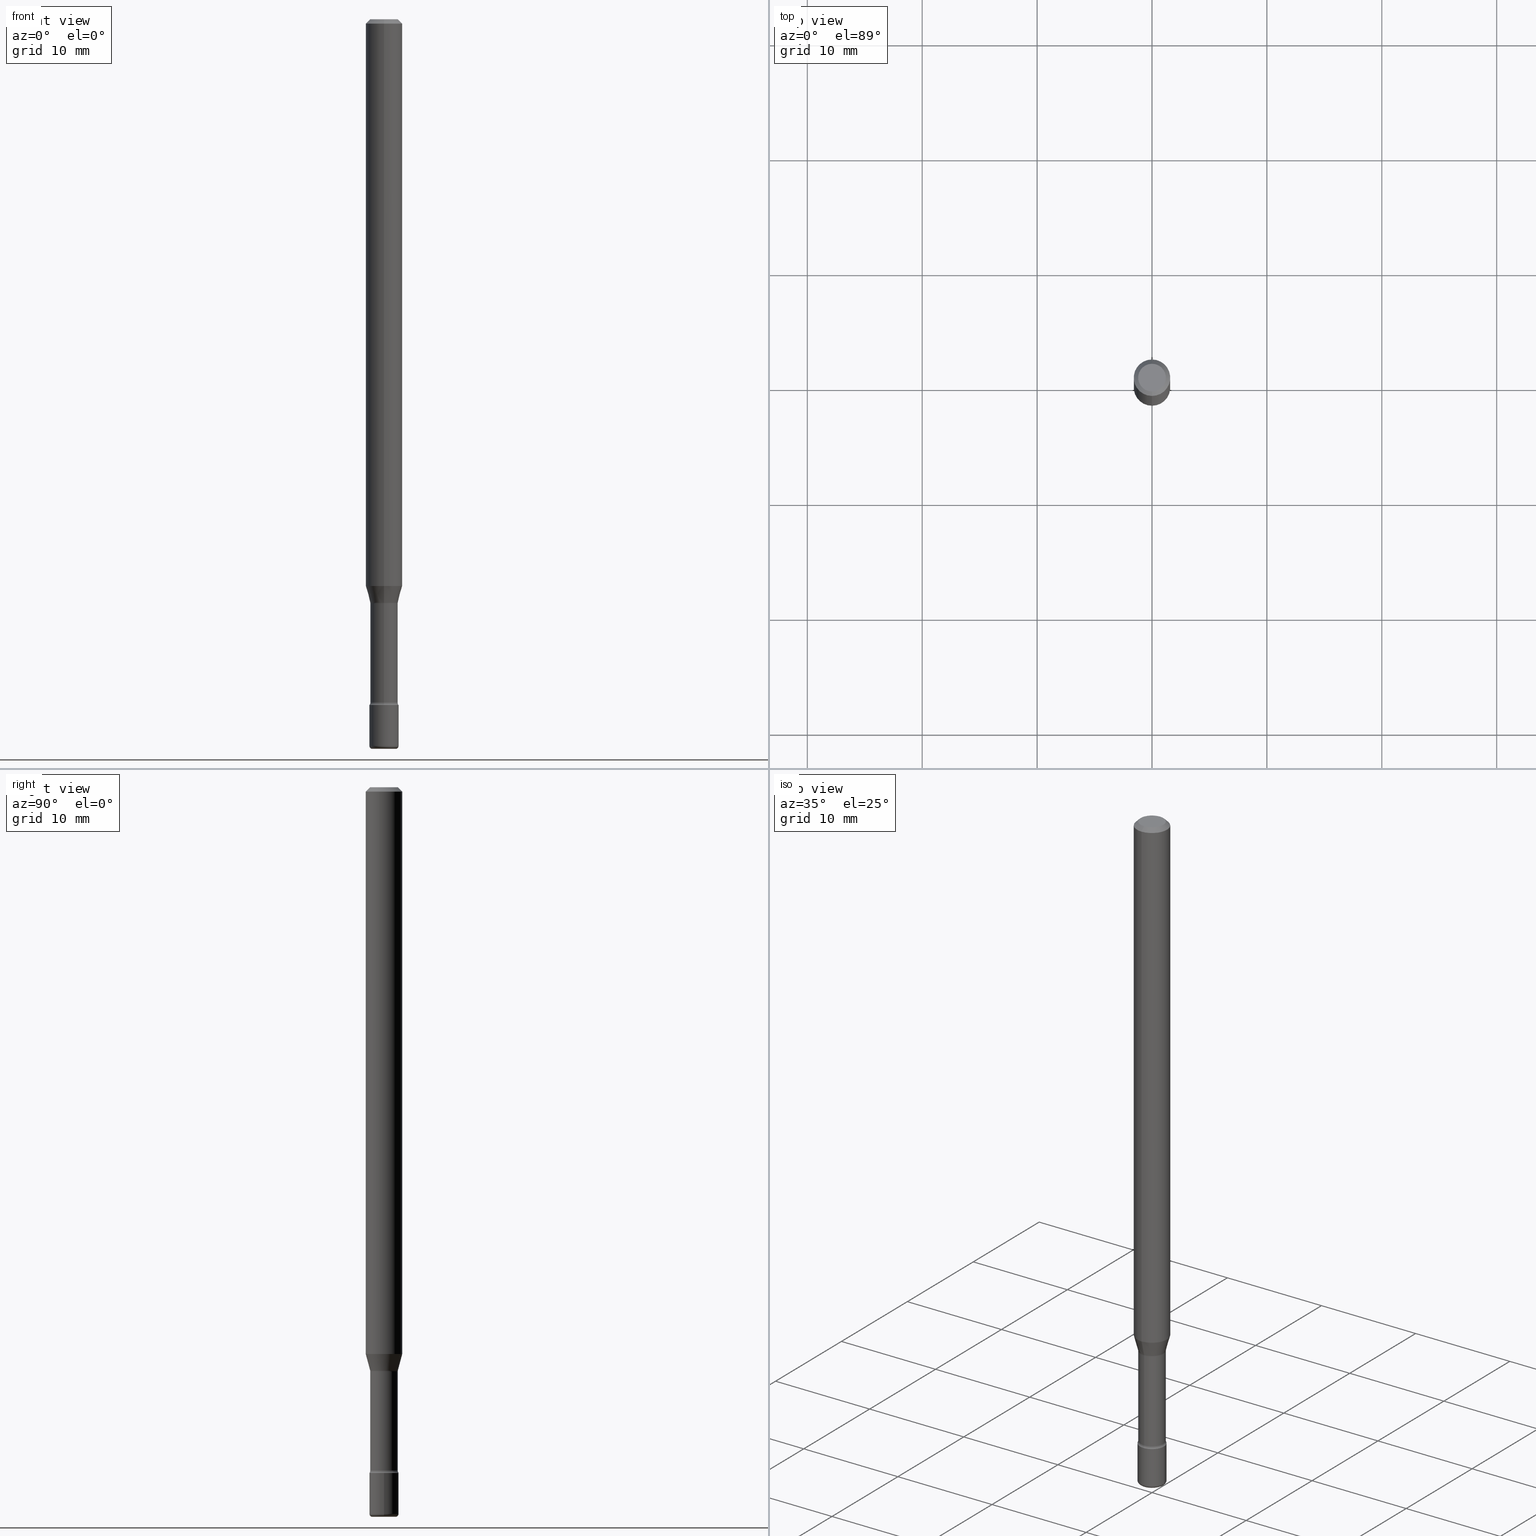
[diagram: canonical four-view strip — front | top / right | iso, engineering-drawing reading convention]
A machine part, canonical four-view strip (front | top / right | iso — engineering-drawing reading convention). The complete STEP part file that produces these views, byte-faithful:
ISO-10303-21;
HEADER;
FILE_DESCRIPTION (( 'STEP AP203' ),
    '1' );
FILE_NAME ('08860.STEP',
    '2024-03-06T20:06:26',
    ( '' ),
    ( '' ),
    'SwSTEP 2.0',
    'SolidWorks 2023',
    '' );
FILE_SCHEMA (( 'CONFIG_CONTROL_DESIGN' ));
ENDSEC;

DATA;
#1 = DIRECTION ( 'NONE',  ( -6.982962677686265922E-15, -1.000000000000000000, 5.749913744050249041E-15 ) ) ;
#2 = CIRCLE ( 'NONE', #531, 0.01000000000000009041 ) ;
#3 = DIRECTION ( 'NONE',  ( -6.982962677686265133E-15, -1.000000000000000000, 5.463695987328526437E-15 ) ) ;
#4 = CARTESIAN_POINT ( 'NONE',  ( 4.886417990261767217E-29, -6.976094884269204022E-15, -1.998092501787273045 ) ) ;
#5 = AXIS2_PLACEMENT_3D ( 'NONE', #545, #416, #63 ) ;
#6 = CIRCLE ( 'NONE', #403, 0.01500000000000002720 ) ;
#7 = CARTESIAN_POINT ( 'NONE',  ( 3.446132268437060393E-16, 0.04699999999999183303, -2.341000000000000192 ) ) ;
#8 = DIRECTION ( 'NONE',  ( -2.445541428082492260E-29, 3.491377340152750324E-15, 1.000000000000000000 ) ) ;
#9 = EDGE_CURVE ( 'NONE', #527, #36, #222, .T. ) ;
#10 = DIRECTION ( 'NONE',  ( -1.000000000000000000, 6.982962677686265922E-15, -4.883557194083112340E-29 ) ) ;
#11 = ORIENTED_EDGE ( 'NONE', *, *, #350, .T. ) ;
#12 = PERSON_AND_ORGANIZATION ( #454, #308 ) ;
#13 = DIRECTION ( 'NONE',  ( -2.438088387897960049E-29, 3.491481338843145188E-15, 1.000000000000000000 ) ) ;
#14 = CARTESIAN_POINT ( 'NONE',  ( 5.746851694535070554E-29, -8.204981146281391784E-15, -2.350000000000000089 ) ) ;
#15 = PERSON_AND_ORGANIZATION_ROLE ( 'creator' ) ;
#16 = ADVANCED_FACE ( 'NONE', ( #132 ), #535, .T. ) ;
#17 = FACE_OUTER_BOUND ( 'NONE', #119, .T. ) ;
#18 = DIRECTION ( 'NONE',  ( 1.000000000000000000, -6.982962677686265922E-15, 4.876176775795935793E-29 ) ) ;
#19 = APPROVAL_ROLE ( '' ) ;
#20 = DIRECTION ( 'NONE',  ( -2.445541428082492260E-29, 3.491377340152750324E-15, 1.000000000000000000 ) ) ;
#21 = VECTOR ( 'NONE', #245, 39.37007874015748143 ) ;
#22 = DIRECTION ( 'NONE',  ( -2.445468806185136597E-29, 3.491481338843145583E-15, 1.000000000000000000 ) ) ;
#23 = EDGE_CURVE ( 'NONE', #565, #494, #265, .T. ) ;
#24 = CARTESIAN_POINT ( 'NONE',  ( 3.668312142123745187E-31, -5.237066010229135864E-17, -0.01500000000000002720 ) ) ;
#25 = ORIENTED_EDGE ( 'NONE', *, *, #359, .F. ) ;
#26 = AXIS2_PLACEMENT_3D ( 'NONE', #90, #224, #405 ) ;
#27 = VECTOR ( 'NONE', #537, 39.37007874015748143 ) ;
#28 = EDGE_CURVE ( 'NONE', #69, #393, #93, .T. ) ;
#29 = CARTESIAN_POINT ( 'NONE',  ( 4.749616140809899417E-29, -6.780789717166906576E-15, -1.942153212482682578 ) ) ;
#30 = ORIENTED_EDGE ( 'NONE', *, *, #422, .F. ) ;
#31 = CARTESIAN_POINT ( 'NONE',  ( -1.169113584055446105E-44, 1.669184350826100908E-30, 4.780733988912460139E-16 ) ) ;
#32 = PRODUCT_RELATED_PRODUCT_CATEGORY ( 'detail', '', ( #432 ) ) ;
#33 = ORIENTED_EDGE ( 'NONE', *, *, #288, .T. ) ;
#34 = AXIS2_PLACEMENT_3D ( 'NONE', #561, #22, #208 ) ;
#35 = DIRECTION ( 'NONE',  ( -2.445468806185136597E-29, 3.491481338843145583E-15, 1.000000000000000000 ) ) ;
#36 = VERTEX_POINT ( 'NONE', #397 ) ;
#37 = CARTESIAN_POINT ( 'NONE',  ( 4.895766893511868006E-29, -6.989857611264368100E-15, -2.001974787463811190 ) ) ;
#38 = EDGE_LOOP ( 'NONE', ( #153, #216, #121, #329 ) ) ;
#39 = EDGE_CURVE ( 'NONE', #36, #527, #100, .T. ) ;
#40 = DIRECTION ( 'NONE',  ( -6.982962677686265922E-15, -1.000000000000000000, 5.812442539711197800E-15 ) ) ;
#41 = CARTESIAN_POINT ( 'NONE',  ( 4.886417990261767217E-29, -6.976094884269204022E-15, -1.998092501787273045 ) ) ;
#42 = CARTESIAN_POINT ( 'NONE',  ( -4.364351673553912750E-16, -0.06250000000000005551, -0.01499999999999981036 ) ) ;
#43 = FACE_OUTER_BOUND ( 'NONE', #185, .T. ) ;
#44 = DIRECTION ( 'NONE',  ( -2.445541428082492260E-29, 3.491377340152750324E-15, 1.000000000000000000 ) ) ;
#45 = EDGE_CURVE ( 'NONE', #427, #179, #571, .T. ) ;
#46 = DIRECTION ( 'NONE',  ( -6.982962677686265922E-15, -1.000000000000000000, 3.491377340152750324E-15 ) ) ;
#47 = VECTOR ( 'NONE', #383, 39.37007874015748143 ) ;
#48 = DIRECTION ( 'NONE',  ( -2.445541428082492260E-29, 3.491377340152750324E-15, 1.000000000000000000 ) ) ;
#49 = EDGE_CURVE ( 'NONE', #475, #521, #2, .T. ) ;
#50 = PERSON_AND_ORGANIZATION_ROLE ( 'design_owner' ) ;
#51 = DIRECTION ( 'NONE',  ( -6.982962677686265922E-15, -1.000000000000000000, 3.491377340152750324E-15 ) ) ;
#52 = DATE_TIME_ROLE ( 'creation_date' ) ;
#53 = CARTESIAN_POINT ( 'NONE',  ( 2.793185071075117657E-16, 0.03999999999999127864, -2.500000000000000000 ) ) ;
#54 = AXIS2_PLACEMENT_3D ( 'NONE', #41, #490, #1 ) ;
#55 = PERSON_AND_ORGANIZATION_ROLE ( 'creator' ) ;
#56 = CYLINDRICAL_SURFACE ( 'NONE', #134, 0.04700000000000000705 ) ;
#57 = CIRCLE ( 'NONE', #226, 0.06250000000000000000 ) ;
#58 = ORIENTED_EDGE ( 'NONE', *, *, #28, .F. ) ;
#59 = APPROVAL_DATE_TIME ( #453, #316 ) ;
#60 = DIRECTION ( 'NONE',  ( -6.982962677686265922E-15, -1.000000000000000000, 3.491377340152749929E-15 ) ) ;
#61 = SHAPE_DEFINITION_REPRESENTATION ( #252, #133 ) ;
#62 = CIRCLE ( 'NONE', #315, 0.01500000000000003587 ) ;
#63 = DIRECTION ( 'NONE',  ( 1.000000000000000000, -6.982962677686261977E-15, 4.883557194083110659E-29 ) ) ;
#64 = ADVANCED_FACE ( 'NONE', ( #497 ), #363, .T. ) ;
#65 = AXIS2_PLACEMENT_3D ( 'NONE', #70, #559, #113 ) ;
#66 = DIRECTION ( 'NONE',  ( -2.445541428082492260E-29, 3.491377340152750324E-15, 1.000000000000000000 ) ) ;
#67 = ORIENTED_EDGE ( 'NONE', *, *, #288, .F. ) ;
#68 = LINE ( 'NONE', #435, #21 ) ;
#69 = VERTEX_POINT ( 'NONE', #264 ) ;
#70 = CARTESIAN_POINT ( 'NONE',  ( 6.089217327400989947E-29, -8.693788533719431716E-15, -2.489999999999999769 ) ) ;
#71 = ORIENTED_EDGE ( 'NONE', *, *, #39, .F. ) ;
#72 = CIRCLE ( 'NONE', #111, 0.05000000000000000278 ) ;
#73 =( GEOMETRIC_REPRESENTATION_CONTEXT ( 3 ) GLOBAL_UNCERTAINTY_ASSIGNED_CONTEXT ( ( #417 ) ) GLOBAL_UNIT_ASSIGNED_CONTEXT ( ( #80, #443, #317 ) ) REPRESENTATION_CONTEXT ( 'NONE', 'WORKASPACE' ) );
#74 = DIRECTION ( 'NONE',  ( -2.445541428082492260E-29, 3.491377340152750324E-15, 1.000000000000000000 ) ) ;
#75 = CIRCLE ( 'NONE', #442, 0.06250000000000000000 ) ;
#76 = EDGE_LOOP ( 'NONE', ( #244, #509, #163, #349 ) ) ;
#77 = AXIS2_PLACEMENT_3D ( 'NONE', #31, #301, #296 ) ;
#78 = CARTESIAN_POINT ( 'NONE',  ( 5.724842475279404612E-29, -8.173557814231803142E-15, -2.341000000000000192 ) ) ;
#79 = EDGE_LOOP ( 'NONE', ( #345, #292, #103, #486 ) ) ;
#80 =( CONVERSION_BASED_UNIT ( 'INCH', #303 ) LENGTH_UNIT ( ) NAMED_UNIT ( #366 ) );
#81 = ORIENTED_EDGE ( 'NONE', *, *, #144, .F. ) ;
#82 = ADVANCED_FACE ( 'NONE', ( #309 ), #430, .F. ) ;
#83 = CARTESIAN_POINT ( 'NONE',  ( 0.05000000000000004441, -9.042936667603745051E-15, -2.489999999999999769 ) ) ;
#84 = ORIENTED_EDGE ( 'NONE', *, *, #445, .T. ) ;
#85 = CIRCLE ( 'NONE', #65, 0.05000000000000000971 ) ;
#86 = DIRECTION ( 'NONE',  ( -6.982962677686272233E-15, -1.000000000000000000, 0.000000000000000000 ) ) ;
#87 = ORIENTED_EDGE ( 'NONE', *, *, #262, .T. ) ;
#88 = ADVANCED_FACE ( 'NONE', ( #43 ), #203, .F. ) ;
#89 = DIRECTION ( 'NONE',  ( 7.105427357601006592E-15, 1.000000000000000000, 0.000000000000000000 ) ) ;
#90 = CARTESIAN_POINT ( 'NONE',  ( 4.895912280719391732E-29, -6.989649408508267577E-15, -2.001974787463811190 ) ) ;
#91 = EDGE_CURVE ( 'NONE', #297, #393, #384, .T. ) ;
#92 = CARTESIAN_POINT ( 'NONE',  ( -0.04000000000000000083, -8.391501709321602173E-15, -2.500000000000000000 ) ) ;
#93 = LINE ( 'NONE', #444, #460 ) ;
#94 = CIRCLE ( 'NONE', #242, 0.04750000000000000749 ) ;
#95 = CALENDAR_DATE ( 2024, 6, 3 ) ;
#96 = CARTESIAN_POINT ( 'NONE',  ( 5.724842475279404612E-29, -8.173557814231803142E-15, -2.341000000000000192 ) ) ;
#97 = COORDINATED_UNIVERSAL_TIME_OFFSET ( 5, 0, .BEHIND. ) ;
#98 = DIRECTION ( 'NONE',  ( -2.445468806185136597E-29, 3.491481338843145583E-15, 1.000000000000000000 ) ) ;
#99 = ADVANCED_FACE ( 'NONE', ( #324 ), #145, .T. ) ;
#100 = CIRCLE ( 'NONE', #54, 0.04751111260566397154 ) ;
#101 = DIRECTION ( 'NONE',  ( 0.000000000000000000, 0.000000000000000000, 1.000000000000000000 ) ) ;
#102 = DIRECTION ( 'NONE',  ( -1.000000000000000000, 6.982962677686265922E-15, -4.883557194083112340E-29 ) ) ;
#103 = ORIENTED_EDGE ( 'NONE', *, *, #382, .F. ) ;
#104 = PRODUCT_DEFINITION ( 'UNKNOWN', '', #375, #344 ) ;
#105 = PERSON_AND_ORGANIZATION_ROLE ( 'classification_officer' ) ;
#106 = DIRECTION ( 'NONE',  ( -2.445541428082492260E-29, 3.491377340152750324E-15, 1.000000000000000000 ) ) ;
#107 = DIRECTION ( 'NONE',  ( -6.982962677686265922E-15, -1.000000000000000000, 4.370956789862821150E-15 ) ) ;
#108 = CC_DESIGN_PERSON_AND_ORGANIZATION_ASSIGNMENT ( #544, #15, ( #375 ) ) ;
#109 = DIRECTION ( 'NONE',  ( -2.445468806185136877E-29, 3.491481338843145188E-15, 1.000000000000000000 ) ) ;
#110 = ORIENTED_EDGE ( 'NONE', *, *, #406, .T. ) ;
#111 = AXIS2_PLACEMENT_3D ( 'NONE', #14, #322, #331 ) ;
#112 = AXIS2_PLACEMENT_3D ( 'NONE', #333, #286, #51 ) ;
#113 = DIRECTION ( 'NONE',  ( 1.000000000000000000, -6.982962677686273021E-15, 0.000000000000000000 ) ) ;
#114 = ORIENTED_EDGE ( 'NONE', *, *, #23, .F. ) ;
#115 = LINE ( 'NONE', #379, #47 ) ;
#116 = VERTEX_POINT ( 'NONE', #549 ) ;
#117 = DIRECTION ( 'NONE',  ( -6.982962677686265922E-15, -1.000000000000000000, 3.491377340152751112E-15 ) ) ;
#118 = LOCAL_TIME ( 15, 6, 26.00000000000000000, #323 ) ;
#119 = EDGE_LOOP ( 'NONE', ( #165, #211 ) ) ;
#120 = CARTESIAN_POINT ( 'NONE',  ( 3.375867592983954636E-16, 0.04751111260565699795, -1.998092501787273267 ) ) ;
#121 = ORIENTED_EDGE ( 'NONE', *, *, #406, .F. ) ;
#122 = CIRCLE ( 'NONE', #451, 0.04000000000000000083 ) ;
#123 = EDGE_CURVE ( 'NONE', #560, #505, #72, .T. ) ;
#124 = DIRECTION ( 'NONE',  ( 1.000000000000000000, -7.105427357601001070E-15, 4.926314234925449358E-29 ) ) ;
#125 = EDGE_LOOP ( 'NONE', ( #114, #517, #562, #342 ) ) ;
#126 = CIRCLE ( 'NONE', #458, 0.04000000000000000083 ) ;
#127 = DIRECTION ( 'NONE',  ( 6.982962677686265922E-15, 1.000000000000000000, -3.491377340152750324E-15 ) ) ;
#128 = EDGE_CURVE ( 'NONE', #36, #116, #239, .T. ) ;
#129 = ORIENTED_EDGE ( 'NONE', *, *, #555, .F. ) ;
#130 = AXIS2_PLACEMENT_3D ( 'NONE', #136, #174, #141 ) ;
#131 = FACE_OUTER_BOUND ( 'NONE', #385, .T. ) ;
#132 = FACE_OUTER_BOUND ( 'NONE', #465, .T. ) ;
#133 = ADVANCED_BREP_SHAPE_REPRESENTATION ( '08860', ( #295, #285, #346 ), #73 ) ;
#134 = AXIS2_PLACEMENT_3D ( 'NONE', #241, #20, #60 ) ;
#135 = CARTESIAN_POINT ( 'NONE',  ( -0.04000000000000000083, -8.409571439415391389E-15, -2.489999999999999769 ) ) ;
#136 = CARTESIAN_POINT ( 'NONE',  ( 4.886417990261767217E-29, -6.976094884269204022E-15, -1.998092501787273045 ) ) ;
#137 = CC_DESIGN_PERSON_AND_ORGANIZATION_ASSIGNMENT ( #552, #105, ( #502 ) ) ;
#138 = CARTESIAN_POINT ( 'NONE',  ( -3.773273898774340269E-16, -0.04750000000000000749, 1.387462965223224144E-16 ) ) ;
#139 = CARTESIAN_POINT ( 'NONE',  ( 4.364351673553919652E-16, 0.06249999999999995143, -0.01500000000000024578 ) ) ;
#140 = APPROVAL_STATUS ( 'not_yet_approved' ) ;
#141 = DIRECTION ( 'NONE',  ( -6.982962677686265922E-15, -1.000000000000000000, 5.749913744050249041E-15 ) ) ;
#142 = VECTOR ( 'NONE', #109, 39.37007874015748143 ) ;
#143 = COORDINATED_UNIVERSAL_TIME_OFFSET ( 5, 0, .BEHIND. ) ;
#144 = EDGE_CURVE ( 'NONE', #229, #116, #402, .T. ) ;
#145 = PLANE ( 'NONE',  #462 ) ;
#146 = CALENDAR_DATE ( 2024, 6, 3 ) ;
#147 = FACE_OUTER_BOUND ( 'NONE', #168, .T. ) ;
#148 = ADVANCED_FACE ( 'NONE', ( #147 ), #440, .T. ) ;
#149 = ORIENTED_EDGE ( 'NONE', *, *, #469, .F. ) ;
#150 = APPROVAL_PERSON_ORGANIZATION ( #155, #558, #457 ) ;
#151 = DATE_AND_TIME ( #548, #298 ) ;
#152 = LINE ( 'NONE', #508, #225 ) ;
#153 = ORIENTED_EDGE ( 'NONE', *, *, #39, .T. ) ;
#154 = ADVANCED_FACE ( 'NONE', ( #410 ), #365, .T. ) ;
#155 = PERSON_AND_ORGANIZATION ( #454, #308 ) ;
#156 = DIRECTION ( 'NONE',  ( 1.000000000000000000, -6.982962677686267499E-15, 4.876176775795936353E-29 ) ) ;
#157 = CARTESIAN_POINT ( 'NONE',  ( 0.05000000000000000971, -3.491481338843134341E-16, 2.438088387897968597E-30 ) ) ;
#158 = AXIS2_PLACEMENT_3D ( 'NONE', #353, #356, #3 ) ;
#159 = CARTESIAN_POINT ( 'NONE',  ( 4.440892098500625669E-16, 0.06250000000000000000, 2.598623151316991680E-16 ) ) ;
#160 = ORIENTED_EDGE ( 'NONE', *, *, #401, .F. ) ;
#161 = LINE ( 'NONE', #159, #290 ) ;
#162 = ADVANCED_FACE ( 'NONE', ( #368 ), #553, .T. ) ;
#163 = ORIENTED_EDGE ( 'NONE', *, *, #123, .F. ) ;
#164 = CYLINDRICAL_SURFACE ( 'NONE', #184, 0.06250000000000000000 ) ;
#165 = ORIENTED_EDGE ( 'NONE', *, *, #367, .F. ) ;
#166 = AXIS2_PLACEMENT_3D ( 'NONE', #37, #493, #532 ) ;
#167 = DIRECTION ( 'NONE',  ( -6.982962677686265922E-15, -1.000000000000000000, 3.483106191921935554E-15 ) ) ;
#168 = EDGE_LOOP ( 'NONE', ( #67, #431, #207, #439 ) ) ;
#169 = FACE_OUTER_BOUND ( 'NONE', #38, .T. ) ;
#170 = ORIENTED_EDGE ( 'NONE', *, *, #350, .F. ) ;
#171 = CARTESIAN_POINT ( 'NONE',  ( 6.089217327400989947E-29, -8.693788533719431716E-15, -2.489999999999999769 ) ) ;
#172 = DIRECTION ( 'NONE',  ( -6.982962677686265922E-15, -1.000000000000000000, 5.749913744050249041E-15 ) ) ;
#173 = CARTESIAN_POINT ( 'NONE',  ( 0.04000000000000000083, -9.008021854215314980E-15, -2.500000000000000000 ) ) ;
#174 = DIRECTION ( 'NONE',  ( -2.445541428082492260E-29, 3.491377340152750324E-15, 1.000000000000000000 ) ) ;
#175 = CC_DESIGN_APPROVAL ( #441, ( #375 ) ) ;
#176 = VECTOR ( 'NONE', #187, 39.37007874015748854 ) ;
#177 = FACE_OUTER_BOUND ( 'NONE', #236, .T. ) ;
#178 = AXIS2_PLACEMENT_3D ( 'NONE', #487, #267, #127 ) ;
#179 = VERTEX_POINT ( 'NONE', #470 ) ;
#180 = TOROIDAL_SURFACE ( 'NONE', #347, 0.06200000000000004813, 0.01500000000000004281 ) ;
#181 = CARTESIAN_POINT ( 'NONE',  ( -0.05000000000000004441, -8.338517165839381307E-15, -2.489999999999999769 ) ) ;
#182 = ORIENTED_EDGE ( 'NONE', *, *, #9, .F. ) ;
#183 = CARTESIAN_POINT ( 'NONE',  ( 3.908379845742528290E-16, 0.04751111260565699795, -1.998092501787273267 ) ) ;
#184 = AXIS2_PLACEMENT_3D ( 'NONE', #201, #426, #117 ) ;
#185 = EDGE_LOOP ( 'NONE', ( #182, #371, #390, #525 ) ) ;
#186 = AXIS2_PLACEMENT_3D ( 'NONE', #452, #8, #46 ) ;
#187 = DIRECTION ( 'NONE',  ( -1.807323732225328562E-15, -0.2588190451025179639, 0.9659258262890690894 ) ) ;
#188 = AXIS2_PLACEMENT_3D ( 'NONE', #206, #392, #254 ) ;
#189 = PERSON_AND_ORGANIZATION ( #454, #308 ) ;
#190 = CARTESIAN_POINT ( 'NONE',  ( -3.317683261006521343E-16, -0.04751111260567094513, -1.998092501787272823 ) ) ;
#191 = ORIENTED_EDGE ( 'NONE', *, *, #359, .T. ) ;
#192 = APPROVAL_STATUS ( 'not_yet_approved' ) ;
#193 = DIRECTION ( 'NONE',  ( 6.982962677686265922E-15, 1.000000000000000000, -3.483106191921935554E-15 ) ) ;
#194 = EDGE_CURVE ( 'NONE', #505, #560, #287, .T. ) ;
#195 = APPROVAL_DATE_TIME ( #501, #441 ) ;
#196 = CARTESIAN_POINT ( 'NONE',  ( 4.749616140809899417E-29, -6.780789717166906576E-15, -1.942153212482682578 ) ) ;
#197 = ADVANCED_FACE ( 'NONE', ( #275 ), #250, .T. ) ;
#198 = CIRCLE ( 'NONE', #300, 0.06250000000000000000 ) ;
#199 = APPROVAL_STATUS ( 'not_yet_approved' ) ;
#200 = CARTESIAN_POINT ( 'NONE',  ( 3.668312142123745187E-31, -5.237066010229135864E-17, -0.01500000000000002720 ) ) ;
#201 = CARTESIAN_POINT ( 'NONE',  ( -1.169113584055446105E-44, 1.669184350826100908E-30, 4.780733988912460139E-16 ) ) ;
#202 = ORIENTED_EDGE ( 'NONE', *, *, #332, .F. ) ;
#203 = TOROIDAL_SURFACE ( 'NONE', #186, 0.06200000000000000649, 0.01500000000000003240 ) ;
#204 = CARTESIAN_POINT ( 'NONE',  ( 3.339550858073042806E-16, 0.04699999999999300571, -2.001974787463811190 ) ) ;
#205 = ORIENTED_EDGE ( 'NONE', *, *, #194, .F. ) ;
#206 = CARTESIAN_POINT ( 'NONE',  ( 5.747022355993856728E-29, -8.204736749358963615E-15, -2.350000000000000089 ) ) ;
#207 = ORIENTED_EDGE ( 'NONE', *, *, #469, .T. ) ;
#208 = DIRECTION ( 'NONE',  ( 1.000000000000000000, -6.982962677686273021E-15, 0.000000000000000000 ) ) ;
#209 = ORIENTED_EDGE ( 'NONE', *, *, #414, .F. ) ;
#210 = CYLINDRICAL_SURFACE ( 'NONE', #310, 0.05000000000000000971 ) ;
#211 = ORIENTED_EDGE ( 'NONE', *, *, #476, .F. ) ;
#212 = AXIS2_PLACEMENT_3D ( 'NONE', #258, #219, #311 ) ;
#213 = DIRECTION ( 'NONE',  ( -6.982962677686265922E-15, -1.000000000000000000, 5.812442539711197800E-15 ) ) ;
#214 = CARTESIAN_POINT ( 'NONE',  ( -1.169113584055446105E-44, 1.669184350826100908E-30, 4.780733988912460139E-16 ) ) ;
#215 = CARTESIAN_POINT ( 'NONE',  ( -3.491481338842560938E-16, -0.05000000000000824618, -2.349999999999999645 ) ) ;
#216 = ORIENTED_EDGE ( 'NONE', *, *, #401, .T. ) ;
#217 = TOROIDAL_SURFACE ( 'NONE', #391, 0.04000000000000000083, 0.01000000000000009041 ) ;
#218 = EDGE_CURVE ( 'NONE', #36, #393, #240, .T. ) ;
#219 = DIRECTION ( 'NONE',  ( -2.445541428082492260E-29, 3.491377340152750324E-15, 1.000000000000000000 ) ) ;
#220 = DIRECTION ( 'NONE',  ( -6.982962677686265922E-15, -1.000000000000000000, 3.491377340152750324E-15 ) ) ;
#221 = CC_DESIGN_APPROVAL ( #558, ( #502 ) ) ;
#222 = CIRCLE ( 'NONE', #551, 0.04751111260566397154 ) ;
#223 = CARTESIAN_POINT ( 'NONE',  ( -4.329436860164915685E-16, -0.06200000000000822215, -2.340999999999999748 ) ) ;
#224 = DIRECTION ( 'NONE',  ( -2.445541428082492260E-29, 3.491377340152750324E-15, 1.000000000000000000 ) ) ;
#225 = VECTOR ( 'NONE', #106, 39.37007874015748143 ) ;
#226 = AXIS2_PLACEMENT_3D ( 'NONE', #29, #472, #474 ) ;
#227 = DIRECTION ( 'NONE',  ( -2.445468806185136597E-29, 3.491481338843145583E-15, 1.000000000000000000 ) ) ;
#228 = CIRCLE ( 'NONE', #34, 0.05000000000000000971 ) ;
#229 = VERTEX_POINT ( 'NONE', #234 ) ;
#230 = ADVANCED_FACE ( 'NONE', ( #464 ), #56, .T. ) ;
#231 = APPLICATION_PROTOCOL_DEFINITION ( 'international standard', 'config_control_design', 1994, #266 ) ;
#232 = DIRECTION ( 'NONE',  ( -2.445468806185136597E-29, 3.491481338843145583E-15, 1.000000000000000000 ) ) ;
#233 = PERSON_AND_ORGANIZATION ( #454, #308 ) ;
#234 = CARTESIAN_POINT ( 'NONE',  ( 4.440892098501102436E-16, 0.06249999999999325540, -1.942153212482682800 ) ) ;
#235 = DIRECTION ( 'NONE',  ( 2.445541428082492260E-29, -3.491377340152750324E-15, -1.000000000000000000 ) ) ;
#236 = EDGE_LOOP ( 'NONE', ( #305, #33 ) ) ;
#237 = COORDINATED_UNIVERSAL_TIME_OFFSET ( 5, 0, .BEHIND. ) ;
#238 = ADVANCED_FACE ( 'NONE', ( #377 ), #330, .T. ) ;
#239 = LINE ( 'NONE', #190, #176 ) ;
#240 = CIRCLE ( 'NONE', #372, 0.01500000000000002720 ) ;
#241 = CARTESIAN_POINT ( 'NONE',  ( -1.169113584055446105E-44, 1.669184350826100908E-30, 4.780733988912460139E-16 ) ) ;
#242 = AXIS2_PLACEMENT_3D ( 'NONE', #389, #341, #556 ) ;
#243 = DIRECTION ( 'NONE',  ( 1.839019923739598738E-15, 0.2588190451025247363, 0.9659258262890673130 ) ) ;
#244 = ORIENTED_EDGE ( 'NONE', *, *, #382, .T. ) ;
#245 = DIRECTION ( 'NONE',  ( -2.445468806185136877E-29, 3.491481338843145188E-15, 1.000000000000000000 ) ) ;
#246 = ORIENTED_EDGE ( 'NONE', *, *, #123, .T. ) ;
#247 = EDGE_CURVE ( 'NONE', #521, #560, #328, .T. ) ;
#248 = DIRECTION ( 'NONE',  ( -6.982962677686265133E-15, -1.000000000000000000, 3.491377340152749929E-15 ) ) ;
#249 = ORIENTED_EDGE ( 'NONE', *, *, #218, .T. ) ;
#250 = TOROIDAL_SURFACE ( 'NONE', #5, 0.04000000000000000083, 0.01000000000000009041 ) ;
#251 = ADVANCED_FACE ( 'NONE', ( #17 ), #370, .F. ) ;
#252 = PRODUCT_DEFINITION_SHAPE ( 'NONE', 'NONE',  #104 ) ;
#253 = ORIENTED_EDGE ( 'NONE', *, *, #247, .T. ) ;
#254 = DIRECTION ( 'NONE',  ( -6.982962677686265133E-15, -1.000000000000000000, 5.463695987328526437E-15 ) ) ;
#255 = CC_DESIGN_PERSON_AND_ORGANIZATION_ASSIGNMENT ( #189, #55, ( #104 ) ) ;
#256 = EDGE_LOOP ( 'NONE', ( #388, #71, #249, #478 ) ) ;
#257 = CIRCLE ( 'NONE', #158, 0.05000000000000000278 ) ;
#258 = CARTESIAN_POINT ( 'NONE',  ( 4.895912280719391732E-29, -6.989649408508267577E-15, -2.001974787463811190 ) ) ;
#259 = ORIENTED_EDGE ( 'NONE', *, *, #276, .F. ) ;
#260 = APPLICATION_CONTEXT ( 'configuration controlled 3d designs of mechanical parts and assemblies' ) ;
#261 = DIRECTION ( 'NONE',  ( -6.982962677686265922E-15, -1.000000000000000000, 3.491377340152751112E-15 ) ) ;
#262 = EDGE_CURVE ( 'NONE', #116, #494, #152, .T. ) ;
#263 = DIRECTION ( 'NONE',  ( -2.445541428082492260E-29, 3.491377340152750324E-15, 1.000000000000000000 ) ) ;
#264 = CARTESIAN_POINT ( 'NONE',  ( -3.281992458511972621E-16, -0.04700000000000817413, -2.340999999999999748 ) ) ;
#265 = LINE ( 'NONE', #361, #27 ) ;
#266 = APPLICATION_CONTEXT ( 'configuration controlled 3d designs of mechanical parts and assemblies' ) ;
#267 = DIRECTION ( 'NONE',  ( 2.445541428082491980E-29, -3.491377340152750324E-15, -1.000000000000000000 ) ) ;
#268 = ADVANCED_FACE ( 'NONE', ( #282 ), #419, .T. ) ;
#269 = APPROVAL_PERSON_ORGANIZATION ( #283, #441, #19 ) ;
#270 = DIRECTION ( 'NONE',  ( 1.000000000000000000, -6.982962677686269077E-15, 0.000000000000000000 ) ) ;
#271 = COORDINATED_UNIVERSAL_TIME_OFFSET ( 5, 0, .BEHIND. ) ;
#272 = EDGE_LOOP ( 'NONE', ( #246, #481 ) ) ;
#273 = CC_DESIGN_DATE_AND_TIME_ASSIGNMENT ( #498, #274, ( #502 ) ) ;
#274 = DATE_TIME_ROLE ( 'classification_date' ) ;
#275 = FACE_OUTER_BOUND ( 'NONE', #79, .T. ) ;
#276 = EDGE_CURVE ( 'NONE', #179, #494, #198, .T. ) ;
#277 = AXIS2_PLACEMENT_3D ( 'NONE', #396, #263, #213 ) ;
#278 = APPLICATION_PROTOCOL_DEFINITION ( 'international standard', 'config_control_design', 1994, #260 ) ;
#279 = CLOSED_SHELL ( 'NONE', ( #88, #268, #82, #148, #16, #420, #64, #428, #238, #546, #251, #306, #230, #496 ) ) ;
#280 = DIRECTION ( 'NONE',  ( -6.982962677686267499E-15, -1.000000000000000000, 0.000000000000000000 ) ) ;
#281 = LOCAL_TIME ( 15, 6, 26.00000000000000000, #97 ) ;
#282 = FACE_OUTER_BOUND ( 'NONE', #488, .T. ) ;
#283 = PERSON_AND_ORGANIZATION ( #454, #308 ) ;
#284 = CARTESIAN_POINT ( 'NONE',  ( 0.000000000000000000, 0.000000000000000000, 0.000000000000000000 ) ) ;
#285 = MANIFOLD_SOLID_BREP ( 'Body-Move/Copy2[2]', #279 ) ;
#286 = DIRECTION ( 'NONE',  ( -2.445541428082491980E-29, 3.491377340152750324E-15, 1.000000000000000000 ) ) ;
#287 = CIRCLE ( 'NONE', #514, 0.05000000000000000278 ) ;
#288 = EDGE_CURVE ( 'NONE', #565, #427, #94, .T. ) ;
#289 = ORIENTED_EDGE ( 'NONE', *, *, #9, .T. ) ;
#290 = VECTOR ( 'NONE', #66, 39.37007874015748143 ) ;
#291 = DIRECTION ( 'NONE',  ( 1.000000000000000000, -6.982962677686267499E-15, 4.876176775795936353E-29 ) ) ;
#292 = ORIENTED_EDGE ( 'NONE', *, *, #538, .T. ) ;
#293 = DIRECTION ( 'NONE',  ( -6.982962677686265922E-15, -1.000000000000000000, 5.749913744050249041E-15 ) ) ;
#294 = ORIENTED_EDGE ( 'NONE', *, *, #128, .T. ) ;
#295 = MANIFOLD_SOLID_BREP ( 'Body-Move/Copy2[1]', #411 ) ;
#296 = DIRECTION ( 'NONE',  ( -6.982962677686265922E-15, -1.000000000000000000, 3.491377340152749929E-15 ) ) ;
#297 = VERTEX_POINT ( 'NONE', #204 ) ;
#298 = LOCAL_TIME ( 15, 6, 26.00000000000000000, #237 ) ;
#299 = CC_DESIGN_PERSON_AND_ORGANIZATION_ASSIGNMENT ( #12, #50, ( #432 ) ) ;
#300 = AXIS2_PLACEMENT_3D ( 'NONE', #24, #483, #167 ) ;
#301 = DIRECTION ( 'NONE',  ( -2.445541428082492260E-29, 3.491377340152750324E-15, 1.000000000000000000 ) ) ;
#302 = ORIENTED_EDGE ( 'NONE', *, *, #28, .T. ) ;
#303 = LENGTH_MEASURE_WITH_UNIT ( LENGTH_MEASURE( 0.02539999999999999897 ), #450 );
#304 = ORIENTED_EDGE ( 'NONE', *, *, #538, .F. ) ;
#305 = ORIENTED_EDGE ( 'NONE', *, *, #376, .T. ) ;
#306 = ADVANCED_FACE ( 'NONE', ( #433 ), #180, .F. ) ;
#307 = AXIS2_PLACEMENT_3D ( 'NONE', #214, #352, #261 ) ;
#308 = ORGANIZATION ( 'UNSPECIFIED', 'UNSPECIFIED', '' ) ;
#309 = FACE_OUTER_BOUND ( 'NONE', #436, .T. ) ;
#310 = AXIS2_PLACEMENT_3D ( 'NONE', #566, #35, #291 ) ;
#311 = DIRECTION ( 'NONE',  ( -6.982962677686266711E-15, -1.000000000000000000, 5.812442539711199378E-15 ) ) ;
#312 = EDGE_CURVE ( 'NONE', #229, #179, #161, .T. ) ;
#313 = DIRECTION ( 'NONE',  ( -6.982962677686265922E-15, -1.000000000000000000, 3.483106191921935554E-15 ) ) ;
#314 = DIRECTION ( 'NONE',  ( 4.937700262164546464E-15, 0.7071067811865449082, -0.7071067811865501263 ) ) ;
#315 = AXIS2_PLACEMENT_3D ( 'NONE', #223, #10, #86 ) ;
#316 = APPROVAL ( #199, 'UNSPECIFIED' ) ;
#317 =( NAMED_UNIT ( * ) SI_UNIT ( $, .STERADIAN. ) SOLID_ANGLE_UNIT ( ) );
#318 = ORIENTED_EDGE ( 'NONE', *, *, #312, .T. ) ;
#319 = LOCAL_TIME ( 15, 6, 26.00000000000000000, #271 ) ;
#320 = AXIS2_PLACEMENT_3D ( 'NONE', #336, #124, #348 ) ;
#321 = CALENDAR_DATE ( 2024, 6, 3 ) ;
#322 = DIRECTION ( 'NONE',  ( -2.445468806185136597E-29, 3.491481338843145583E-15, 1.000000000000000000 ) ) ;
#323 = COORDINATED_UNIVERSAL_TIME_OFFSET ( 5, 0, .BEHIND. ) ;
#324 = FACE_OUTER_BOUND ( 'NONE', #567, .T. ) ;
#325 = CC_DESIGN_PERSON_AND_ORGANIZATION_ASSIGNMENT ( #466, #415, ( #375 ) ) ;
#326 = ORIENTED_EDGE ( 'NONE', *, *, #91, .F. ) ;
#327 = DATE_AND_TIME ( #468, #118 ) ;
#328 = LINE ( 'NONE', #157, #142 ) ;
#329 = ORIENTED_EDGE ( 'NONE', *, *, #128, .F. ) ;
#330 = CONICAL_SURFACE ( 'NONE', #357, 0.06250000000000000000, 0.7853981633974480570 ) ;
#331 = DIRECTION ( 'NONE',  ( 1.000000000000000000, -6.982962677686274599E-15, 0.000000000000000000 ) ) ;
#332 = EDGE_CURVE ( 'NONE', #557, #543, #338, .T. ) ;
#333 = CARTESIAN_POINT ( 'NONE',  ( 3.491481338843707252E-16, 0.04999999999999180100, -2.350000000000000533 ) ) ;
#334 = ORIENTED_EDGE ( 'NONE', *, *, #437, .F. ) ;
#335 = CIRCLE ( 'NONE', #463, 0.01000000000000009041 ) ;
#336 = CARTESIAN_POINT ( 'NONE',  ( 4.405364961713196496E-16, 0.06199999999999188105, -2.341000000000000192 ) ) ;
#337 = ORIENTED_EDGE ( 'NONE', *, *, #422, .T. ) ;
#338 = CIRCLE ( 'NONE', #320, 0.01500000000000003587 ) ;
#339 = CARTESIAN_POINT ( 'NONE',  ( -3.281992458512055452E-16, -0.04700000000000698758, -2.001974787463810745 ) ) ;
#340 = ORIENTED_EDGE ( 'NONE', *, *, #510, .T. ) ;
#341 = DIRECTION ( 'NONE',  ( -2.445541428082492260E-29, 3.491377340152750324E-15, 1.000000000000000000 ) ) ;
#342 = ORIENTED_EDGE ( 'NONE', *, *, #276, .T. ) ;
#343 = CARTESIAN_POINT ( 'NONE',  ( 6.113672015462842613E-29, -8.728703347107864943E-15, -2.500000000000000000 ) ) ;
#344 = DESIGN_CONTEXT ( 'detailed design', #260, 'design' ) ;
#345 = ORIENTED_EDGE ( 'NONE', *, *, #437, .T. ) ;
#346 = AXIS2_PLACEMENT_3D ( 'NONE', #373, #101, #495 ) ;
#347 = AXIS2_PLACEMENT_3D ( 'NONE', #78, #74, #564 ) ;
#348 = DIRECTION ( 'NONE',  ( 7.105427357601001859E-15, 1.000000000000000000, 0.000000000000000000 ) ) ;
#349 = ORIENTED_EDGE ( 'NONE', *, *, #247, .F. ) ;
#350 = EDGE_CURVE ( 'NONE', #557, #297, #115, .T. ) ;
#351 = CARTESIAN_POINT ( 'NONE',  ( -0.05000000000000000278, -8.094113472120361341E-15, -2.350000000000000089 ) ) ;
#352 = DIRECTION ( 'NONE',  ( -2.445541428082492260E-29, 3.491377340152750324E-15, 1.000000000000000000 ) ) ;
#353 = CARTESIAN_POINT ( 'NONE',  ( 5.747022355993856728E-29, -8.204736749358963615E-15, -2.350000000000000089 ) ) ;
#354 = CARTESIAN_POINT ( 'NONE',  ( 0.04000000000000000083, -8.973107040826881753E-15, -2.489999999999999769 ) ) ;
#355 = AXIS2_PLACEMENT_3D ( 'NONE', #542, #374, #512 ) ;
#356 = DIRECTION ( 'NONE',  ( -2.445541428082492260E-29, 3.491377340152750324E-15, 1.000000000000000000 ) ) ;
#357 = AXIS2_PLACEMENT_3D ( 'NONE', #200, #235, #193 ) ;
#358 = ORIENTED_EDGE ( 'NONE', *, *, #332, .T. ) ;
#359 = EDGE_CURVE ( 'NONE', #513, #475, #122, .T. ) ;
#360 = CARTESIAN_POINT ( 'NONE',  ( 4.405364961713110708E-16, 0.06199999999999301209, -2.001974787463811190 ) ) ;
#361 = CARTESIAN_POINT ( 'NONE',  ( -4.287811248607203282E-16, -0.06250000000000005551, -0.01499999999999981036 ) ) ;
#362 = DIRECTION ( 'NONE',  ( -2.445541428082492260E-29, 3.491377340152750324E-15, 1.000000000000000000 ) ) ;
#363 = CONICAL_SURFACE ( 'NONE', #130, 0.04751111260566397154, 0.2617993877991500740 ) ;
#364 = APPROVAL_ROLE ( '' ) ;
#365 = PLANE ( 'NONE',  #471 ) ;
#366 = DIMENSIONAL_EXPONENTS ( 1.000000000000000000, 0.000000000000000000, 0.000000000000000000, 0.000000000000000000, 0.000000000000000000, 0.000000000000000000, 0.000000000000000000 ) ;
#367 = EDGE_CURVE ( 'NONE', #550, #543, #423, .T. ) ;
#368 = FACE_OUTER_BOUND ( 'NONE', #425, .T. ) ;
#369 = ORIENTED_EDGE ( 'NONE', *, *, #445, .F. ) ;
#370 = PLANE ( 'NONE',  #112 ) ;
#371 = ORIENTED_EDGE ( 'NONE', *, *, #563, .T. ) ;
#372 = AXIS2_PLACEMENT_3D ( 'NONE', #467, #102, #280 ) ;
#373 = CARTESIAN_POINT ( 'NONE',  ( 0.000000000000000000, 0.000000000000000000, 0.000000000000000000 ) ) ;
#374 = DIRECTION ( 'NONE',  ( 2.445541428082492260E-29, -3.491377340152750324E-15, -1.000000000000000000 ) ) ;
#375 = PRODUCT_DEFINITION_FORMATION_WITH_SPECIFIED_SOURCE ( 'ANY', '', #432, .NOT_KNOWN. ) ;
#376 = EDGE_CURVE ( 'NONE', #427, #565, #518, .T. ) ;
#377 = FACE_OUTER_BOUND ( 'NONE', #125, .T. ) ;
#378 = CC_DESIGN_DATE_AND_TIME_ASSIGNMENT ( #151, #52, ( #104 ) ) ;
#379 = CARTESIAN_POINT ( 'NONE',  ( 3.339550858072470388E-16, 0.04700000000000000705, 3.139786639040668225E-16 ) ) ;
#380 = ORIENTED_EDGE ( 'NONE', *, *, #367, .T. ) ;
#381 = VECTOR ( 'NONE', #314, 39.37007874015748143 ) ;
#382 = EDGE_CURVE ( 'NONE', #521, #523, #85, .T. ) ;
#383 = DIRECTION ( 'NONE',  ( -2.445541428082492260E-29, 3.491377340152750324E-15, 1.000000000000000000 ) ) ;
#384 = CIRCLE ( 'NONE', #26, 0.04699999999999999317 ) ;
#385 = EDGE_LOOP ( 'NONE', ( #304, #191, #529, #30 ) ) ;
#386 = APPROVAL_PERSON_ORGANIZATION ( #233, #316, #364 ) ;
#387 = FACE_OUTER_BOUND ( 'NONE', #539, .T. ) ;
#388 = ORIENTED_EDGE ( 'NONE', *, *, #563, .F. ) ;
#389 = CARTESIAN_POINT ( 'NONE',  ( 6.629452896351596937E-46, -9.454610252272620531E-32, -2.709412713493322385E-17 ) ) ;
#390 = ORIENTED_EDGE ( 'NONE', *, *, #91, .T. ) ;
#391 = AXIS2_PLACEMENT_3D ( 'NONE', #171, #534, #489 ) ;
#392 = DIRECTION ( 'NONE',  ( -2.445541428082492260E-29, 3.491377340152750324E-15, 1.000000000000000000 ) ) ;
#393 = VERTEX_POINT ( 'NONE', #339 ) ;
#394 = AXIS2_PLACEMENT_3D ( 'NONE', #196, #459, #107 ) ;
#395 = ADVANCED_FACE ( 'NONE', ( #520 ), #210, .T. ) ;
#396 = CARTESIAN_POINT ( 'NONE',  ( 5.725012483141114982E-29, -8.173314353297587961E-15, -2.341000000000000192 ) ) ;
#397 = CARTESIAN_POINT ( 'NONE',  ( -3.317683261006521343E-16, -0.04751111260567094513, -1.998092501787272823 ) ) ;
#398 = AXIS2_PLACEMENT_3D ( 'NONE', #424, #526, #293 ) ;
#399 = DIRECTION ( 'NONE',  ( -2.445541428082492260E-29, 3.491377340152750324E-15, 1.000000000000000000 ) ) ;
#400 = CARTESIAN_POINT ( 'NONE',  ( 3.668312142123745187E-31, -5.237066010229135864E-17, -0.01500000000000002720 ) ) ;
#401 = EDGE_CURVE ( 'NONE', #527, #229, #522, .T. ) ;
#402 = CIRCLE ( 'NONE', #394, 0.06250000000000000000 ) ;
#403 = AXIS2_PLACEMENT_3D ( 'NONE', #360, #536, #89 ) ;
#404 = DIRECTION ( 'NONE',  ( -1.000000000000000000, 7.105427357600958471E-15, 0.000000000000000000 ) ) ;
#405 = DIRECTION ( 'NONE',  ( -6.982962677686266711E-15, -1.000000000000000000, 5.812442539711199378E-15 ) ) ;
#406 = EDGE_CURVE ( 'NONE', #116, #229, #57, .T. ) ;
#407 = FACE_OUTER_BOUND ( 'NONE', #256, .T. ) ;
#408 = DIRECTION ( 'NONE',  ( -6.982962677686266711E-15, -1.000000000000000000, 3.491481338843145583E-15 ) ) ;
#409 = CIRCLE ( 'NONE', #277, 0.04700000000000000705 ) ;
#410 = FACE_OUTER_BOUND ( 'NONE', #272, .T. ) ;
#411 = CLOSED_SHELL ( 'NONE', ( #395, #197, #154, #99, #506, #162 ) ) ;
#412 = MECHANICAL_CONTEXT ( 'NONE', #266, 'mechanical' ) ;
#413 = DIRECTION ( 'NONE',  ( 2.438088387897960049E-29, -3.491481338843145188E-15, -1.000000000000000000 ) ) ;
#414 = EDGE_CURVE ( 'NONE', #523, #505, #68, .T. ) ;
#415 = PERSON_AND_ORGANIZATION_ROLE ( 'design_supplier' ) ;
#416 = DIRECTION ( 'NONE',  ( -2.445468806185136597E-29, 3.491481338843145583E-15, 1.000000000000000000 ) ) ;
#417 = UNCERTAINTY_MEASURE_WITH_UNIT (LENGTH_MEASURE( 1.000000000000000082E-05 ), #80, 'distance_accuracy_value', 'NONE');
#418 = SECURITY_CLASSIFICATION_LEVEL ( 'unclassified' ) ;
#419 = CYLINDRICAL_SURFACE ( 'NONE', #77, 0.04700000000000000705 ) ;
#420 = ADVANCED_FACE ( 'NONE', ( #169 ), #519, .T. ) ;
#421 = CARTESIAN_POINT ( 'NONE',  ( 5.746851694535070554E-29, -8.204981146281391784E-15, -2.350000000000000089 ) ) ;
#422 = EDGE_CURVE ( 'NONE', #523, #521, #228, .T. ) ;
#423 = CIRCLE ( 'NONE', #188, 0.05000000000000000278 ) ;
#424 = CARTESIAN_POINT ( 'NONE',  ( 4.886417990261767217E-29, -6.976094884269204022E-15, -1.998092501787273045 ) ) ;
#425 = EDGE_LOOP ( 'NONE', ( #209, #337, #253, #205 ) ) ;
#426 = DIRECTION ( 'NONE',  ( -2.445541428082492260E-29, 3.491377340152750324E-15, 1.000000000000000000 ) ) ;
#427 = VERTEX_POINT ( 'NONE', #477 ) ;
#428 = ADVANCED_FACE ( 'NONE', ( #387 ), #164, .T. ) ;
#429 = DIRECTION ( 'NONE',  ( 1.000000000000000000, -6.982962677686259611E-15, 0.000000000000000000 ) ) ;
#430 = TOROIDAL_SURFACE ( 'NONE', #504, 0.06200000000000004813, 0.01500000000000004281 ) ;
#431 = ORIENTED_EDGE ( 'NONE', *, *, #23, .T. ) ;
#432 = PRODUCT ( '08860', '08860', '', ( #412 ) ) ;
#433 = FACE_OUTER_BOUND ( 'NONE', #492, .T. ) ;
#434 = ORIENTED_EDGE ( 'NONE', *, *, #312, .F. ) ;
#435 = CARTESIAN_POINT ( 'NONE',  ( -0.05000000000000000971, 3.552713678800501620E-16, -2.459467545127453311E-30 ) ) ;
#436 = EDGE_LOOP ( 'NONE', ( #500, #358, #473, #484 ) ) ;
#437 = EDGE_CURVE ( 'NONE', #475, #513, #126, .T. ) ;
#438 = DIRECTION ( 'NONE',  ( -2.445541428082492260E-29, 3.491377340152750324E-15, 1.000000000000000000 ) ) ;
#439 = ORIENTED_EDGE ( 'NONE', *, *, #45, .F. ) ;
#440 = CONICAL_SURFACE ( 'NONE', #355, 0.06250000000000000000, 0.7853981633974480570 ) ;
#441 = APPROVAL ( #140, 'UNSPECIFIED' ) ;
#442 = AXIS2_PLACEMENT_3D ( 'NONE', #400, #438, #313 ) ;
#443 =( NAMED_UNIT ( * ) PLANE_ANGLE_UNIT ( ) SI_UNIT ( $, .RADIAN. ) );
#444 = CARTESIAN_POINT ( 'NONE',  ( -3.281992458512545531E-16, -0.04700000000000000705, 6.421681338784253533E-16 ) ) ;
#445 = EDGE_CURVE ( 'NONE', #69, #557, #409, .T. ) ;
#446 = DIRECTION ( 'NONE',  ( 7.105427357601001859E-15, 1.000000000000000000, -3.491481338843145583E-15 ) ) ;
#447 = ORIENTED_EDGE ( 'NONE', *, *, #456, .T. ) ;
#448 = CARTESIAN_POINT ( 'NONE',  ( 6.113672015462842613E-29, -8.728703347107864943E-15, -2.500000000000000000 ) ) ;
#449 = ORIENTED_EDGE ( 'NONE', *, *, #144, .T. ) ;
#450 =( LENGTH_UNIT ( ) NAMED_UNIT ( * ) SI_UNIT ( $, .METRE. ) );
#451 = AXIS2_PLACEMENT_3D ( 'NONE', #343, #480, #429 ) ;
#452 = CARTESIAN_POINT ( 'NONE',  ( 4.895766893511868006E-29, -6.989857611264368100E-15, -2.001974787463811190 ) ) ;
#453 = DATE_AND_TIME ( #95, #281 ) ;
#454 = PERSON ( 'UNSPECIFIED', 'UNSPECIFIED', 'UNSPECIFIED', ('UNSPECIFIED'), ('UNSPECIFIED'), ('UNSPECIFIED') ) ;
#455 = EDGE_LOOP ( 'NONE', ( #160, #289, #294, #81 ) ) ;
#456 = EDGE_CURVE ( 'NONE', #557, #69, #461, .T. ) ;
#457 = APPROVAL_ROLE ( '' ) ;
#458 = AXIS2_PLACEMENT_3D ( 'NONE', #448, #227, #572 ) ;
#459 = DIRECTION ( 'NONE',  ( -2.445541428082492260E-29, 3.491377340152750324E-15, 1.000000000000000000 ) ) ;
#460 = VECTOR ( 'NONE', #48, 39.37007874015748143 ) ;
#461 = CIRCLE ( 'NONE', #569, 0.04700000000000000705 ) ;
#462 = AXIS2_PLACEMENT_3D ( 'NONE', #53, #413, #511 ) ;
#463 = AXIS2_PLACEMENT_3D ( 'NONE', #135, #446, #404 ) ;
#464 = FACE_OUTER_BOUND ( 'NONE', #533, .T. ) ;
#465 = EDGE_LOOP ( 'NONE', ( #110, #318, #149, #547 ) ) ;
#466 = PERSON_AND_ORGANIZATION ( #454, #308 ) ;
#467 = CARTESIAN_POINT ( 'NONE',  ( -4.329436860164995557E-16, -0.06200000000000700090, -2.001974787463810745 ) ) ;
#468 = CALENDAR_DATE ( 2024, 6, 3 ) ;
#469 = EDGE_CURVE ( 'NONE', #494, #179, #75, .T. ) ;
#470 = CARTESIAN_POINT ( 'NONE',  ( 4.440892098501103423E-16, 0.06249999999999993755, -0.01500000000000024578 ) ) ;
#471 = AXIS2_PLACEMENT_3D ( 'NONE', #499, #13, #18 ) ;
#472 = DIRECTION ( 'NONE',  ( -2.445541428082492260E-29, 3.491377340152750324E-15, 1.000000000000000000 ) ) ;
#473 = ORIENTED_EDGE ( 'NONE', *, *, #476, .T. ) ;
#474 = DIRECTION ( 'NONE',  ( -6.982962677686265922E-15, -1.000000000000000000, 4.370956789862821150E-15 ) ) ;
#475 = VERTEX_POINT ( 'NONE', #173 ) ;
#476 = EDGE_CURVE ( 'NONE', #543, #550, #257, .T. ) ;
#477 = CARTESIAN_POINT ( 'NONE',  ( 3.840629472727447874E-16, 0.04750000000000000749, -1.929345507921888683E-16 ) ) ;
#478 = ORIENTED_EDGE ( 'NONE', *, *, #555, .T. ) ;
#479 = LOCAL_TIME ( 15, 6, 26.00000000000000000, #143 ) ;
#480 = DIRECTION ( 'NONE',  ( -2.445468806185136597E-29, 3.491481338843145583E-15, 1.000000000000000000 ) ) ;
#481 = ORIENTED_EDGE ( 'NONE', *, *, #194, .T. ) ;
#482 = CC_DESIGN_APPROVAL ( #316, ( #104 ) ) ;
#483 = DIRECTION ( 'NONE',  ( -2.445541428082492260E-29, 3.491377340152750324E-15, 1.000000000000000000 ) ) ;
#484 = ORIENTED_EDGE ( 'NONE', *, *, #510, .F. ) ;
#485 = CARTESIAN_POINT ( 'NONE',  ( 5.725012483141114982E-29, -8.173314353297587961E-15, -2.341000000000000192 ) ) ;
#486 = ORIENTED_EDGE ( 'NONE', *, *, #49, .F. ) ;
#487 = CARTESIAN_POINT ( 'NONE',  ( 3.316907271900976589E-16, 0.04750000000000000749, 5.964921222090073982E-17 ) ) ;
#488 = EDGE_LOOP ( 'NONE', ( #84, #11, #129, #58 ) ) ;
#489 = DIRECTION ( 'NONE',  ( 1.000000000000000000, -6.982962677686261977E-15, 4.883557194083110659E-29 ) ) ;
#490 = DIRECTION ( 'NONE',  ( -2.445541428082492260E-29, 3.491377340152750324E-15, 1.000000000000000000 ) ) ;
#491 = CARTESIAN_POINT ( 'NONE',  ( 0.05000000000000000278, -8.554129280165706697E-15, -2.350000000000000089 ) ) ;
#492 = EDGE_LOOP ( 'NONE', ( #202, #369, #340, #380 ) ) ;
#493 = DIRECTION ( 'NONE',  ( -2.445541428082492260E-29, 3.491377340152750324E-15, 1.000000000000000000 ) ) ;
#494 = VERTEX_POINT ( 'NONE', #42 ) ;
#495 = DIRECTION ( 'NONE',  ( 1.000000000000000000, 0.000000000000000000, 0.000000000000000000 ) ) ;
#496 = ADVANCED_FACE ( 'NONE', ( #407 ), #554, .F. ) ;
#497 = FACE_OUTER_BOUND ( 'NONE', #455, .T. ) ;
#498 = DATE_AND_TIME ( #321, #479 ) ;
#499 = CARTESIAN_POINT ( 'NONE',  ( 5.746851694535070554E-29, -8.204981146281391784E-15, -2.350000000000000089 ) ) ;
#500 = ORIENTED_EDGE ( 'NONE', *, *, #456, .F. ) ;
#501 = DATE_AND_TIME ( #146, #319 ) ;
#502 = SECURITY_CLASSIFICATION ( '', '', #418 ) ;
#503 = DIRECTION ( 'NONE',  ( 1.000000000000000000, -6.982962677686274599E-15, 0.000000000000000000 ) ) ;
#504 = AXIS2_PLACEMENT_3D ( 'NONE', #96, #362, #220 ) ;
#505 = VERTEX_POINT ( 'NONE', #351 ) ;
#506 = ADVANCED_FACE ( 'NONE', ( #131 ), #217, .T. ) ;
#507 = APPROVAL_DATE_TIME ( #327, #558 ) ;
#508 = CARTESIAN_POINT ( 'NONE',  ( -4.364351673553916201E-16, -0.06250000000000000000, 6.962844826507930571E-16 ) ) ;
#509 = ORIENTED_EDGE ( 'NONE', *, *, #414, .T. ) ;
#510 = EDGE_CURVE ( 'NONE', #69, #550, #62, .T. ) ;
#511 = DIRECTION ( 'NONE',  ( -1.000000000000000000, 6.982962677686265922E-15, -4.876176775795935793E-29 ) ) ;
#512 = DIRECTION ( 'NONE',  ( 6.982962677686265922E-15, 1.000000000000000000, -3.483106191921935554E-15 ) ) ;
#513 = VERTEX_POINT ( 'NONE', #92 ) ;
#514 = AXIS2_PLACEMENT_3D ( 'NONE', #421, #98, #503 ) ;
#515 = CARTESIAN_POINT ( 'NONE',  ( 6.629452896351596937E-46, -9.454610252272620531E-32, -2.709412713493322385E-17 ) ) ;
#516 = CIRCLE ( 'NONE', #212, 0.04699999999999999317 ) ;
#517 = ORIENTED_EDGE ( 'NONE', *, *, #376, .F. ) ;
#518 = CIRCLE ( 'NONE', #568, 0.04750000000000000749 ) ;
#519 = CONICAL_SURFACE ( 'NONE', #398, 0.04751111260566397154, 0.2617993877991500740 ) ;
#520 = FACE_OUTER_BOUND ( 'NONE', #76, .T. ) ;
#521 = VERTEX_POINT ( 'NONE', #83 ) ;
#522 = LINE ( 'NONE', #120, #541 ) ;
#523 = VERTEX_POINT ( 'NONE', #181 ) ;
#524 = DIRECTION ( 'NONE',  ( -2.445541428082492260E-29, 3.491377340152750324E-15, 1.000000000000000000 ) ) ;
#525 = ORIENTED_EDGE ( 'NONE', *, *, #218, .F. ) ;
#526 = DIRECTION ( 'NONE',  ( -2.445541428082492260E-29, 3.491377340152750324E-15, 1.000000000000000000 ) ) ;
#527 = VERTEX_POINT ( 'NONE', #183 ) ;
#528 = PLANE ( 'NONE',  #178 ) ;
#529 = ORIENTED_EDGE ( 'NONE', *, *, #49, .T. ) ;
#530 = CC_DESIGN_SECURITY_CLASSIFICATION ( #502, ( #375 ) ) ;
#531 = AXIS2_PLACEMENT_3D ( 'NONE', #354, #408, #270 ) ;
#532 = DIRECTION ( 'NONE',  ( -6.982962677686265922E-15, -1.000000000000000000, 3.491377340152750324E-15 ) ) ;
#533 = EDGE_LOOP ( 'NONE', ( #170, #447, #302, #326 ) ) ;
#534 = DIRECTION ( 'NONE',  ( -2.445468806185136597E-29, 3.491481338843145583E-15, 1.000000000000000000 ) ) ;
#535 = CYLINDRICAL_SURFACE ( 'NONE', #307, 0.06250000000000000000 ) ;
#536 = DIRECTION ( 'NONE',  ( 1.000000000000000000, -7.105427357601001070E-15, 4.926314234925449358E-29 ) ) ;
#537 = DIRECTION ( 'NONE',  ( -4.851104656540962697E-15, -0.7071067811865497932, -0.7071067811865452413 ) ) ;
#538 = EDGE_CURVE ( 'NONE', #513, #523, #335, .T. ) ;
#539 = EDGE_LOOP ( 'NONE', ( #434, #449, #87, #259 ) ) ;
#540 = AXIS2_PLACEMENT_3D ( 'NONE', #284, #232, #156 ) ;
#541 = VECTOR ( 'NONE', #243, 39.37007874015748854 ) ;
#542 = CARTESIAN_POINT ( 'NONE',  ( 3.668312142123745187E-31, -5.237066010229135864E-17, -0.01500000000000002720 ) ) ;
#543 = VERTEX_POINT ( 'NONE', #570 ) ;
#544 = PERSON_AND_ORGANIZATION ( #454, #308 ) ;
#545 = CARTESIAN_POINT ( 'NONE',  ( 6.089217327400989947E-29, -8.693788533719431716E-15, -2.489999999999999769 ) ) ;
#546 = ADVANCED_FACE ( 'NONE', ( #177 ), #528, .F. ) ;
#547 = ORIENTED_EDGE ( 'NONE', *, *, #262, .F. ) ;
#548 = CALENDAR_DATE ( 2024, 6, 3 ) ;
#549 = CARTESIAN_POINT ( 'NONE',  ( -4.364351673553439433E-16, -0.06250000000000675848, -1.942153212482682134 ) ) ;
#550 = VERTEX_POINT ( 'NONE', #215 ) ;
#551 = AXIS2_PLACEMENT_3D ( 'NONE', #4, #399, #172 ) ;
#552 = PERSON_AND_ORGANIZATION ( #454, #308 ) ;
#553 = CYLINDRICAL_SURFACE ( 'NONE', #540, 0.05000000000000000971 ) ;
#554 = TOROIDAL_SURFACE ( 'NONE', #166, 0.06200000000000000649, 0.01500000000000003240 ) ;
#555 = EDGE_CURVE ( 'NONE', #393, #297, #516, .T. ) ;
#556 = DIRECTION ( 'NONE',  ( -6.982962677686265133E-15, -1.000000000000000000, 3.491377340152749929E-15 ) ) ;
#557 = VERTEX_POINT ( 'NONE', #7 ) ;
#558 = APPROVAL ( #192, 'UNSPECIFIED' ) ;
#559 = DIRECTION ( 'NONE',  ( -2.445468806185136597E-29, 3.491481338843145583E-15, 1.000000000000000000 ) ) ;
#560 = VERTEX_POINT ( 'NONE', #491 ) ;
#561 = CARTESIAN_POINT ( 'NONE',  ( 6.089217327400989947E-29, -8.693788533719431716E-15, -2.489999999999999769 ) ) ;
#562 = ORIENTED_EDGE ( 'NONE', *, *, #45, .T. ) ;
#563 = EDGE_CURVE ( 'NONE', #527, #297, #6, .T. ) ;
#564 = DIRECTION ( 'NONE',  ( -6.982962677686265922E-15, -1.000000000000000000, 3.491377340152750324E-15 ) ) ;
#565 = VERTEX_POINT ( 'NONE', #138 ) ;
#566 = CARTESIAN_POINT ( 'NONE',  ( 0.000000000000000000, 0.000000000000000000, 0.000000000000000000 ) ) ;
#567 = EDGE_LOOP ( 'NONE', ( #334, #25 ) ) ;
#568 = AXIS2_PLACEMENT_3D ( 'NONE', #515, #524, #248 ) ;
#569 = AXIS2_PLACEMENT_3D ( 'NONE', #485, #44, #40 ) ;
#570 = CARTESIAN_POINT ( 'NONE',  ( 3.552713678801077488E-16, 0.04999999999999183570, -2.350000000000000533 ) ) ;
#571 = LINE ( 'NONE', #139, #381 ) ;
#572 = DIRECTION ( 'NONE',  ( 1.000000000000000000, -6.982962677686259611E-15, 0.000000000000000000 ) ) ;
ENDSEC;
END-ISO-10303-21;
